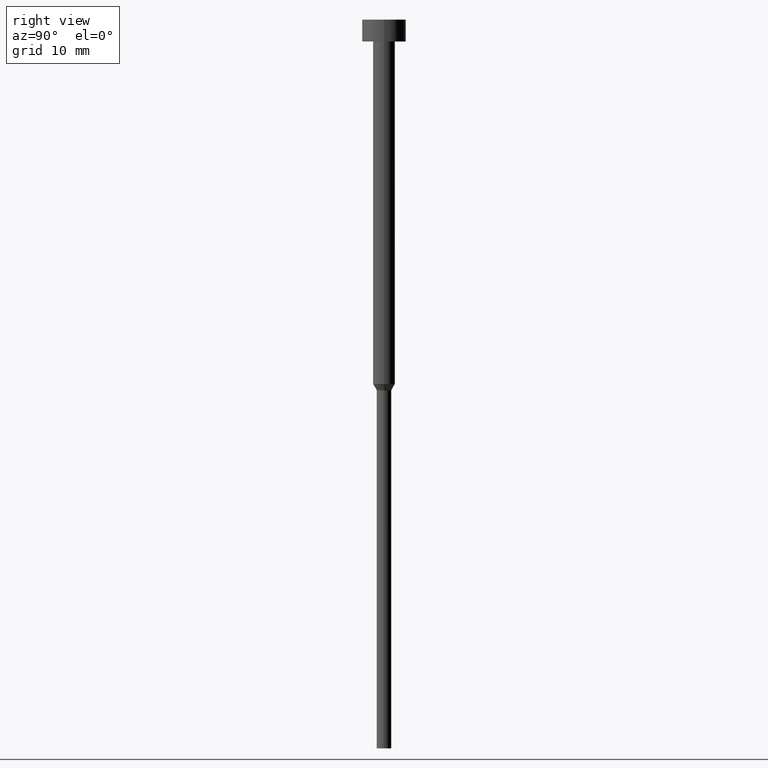
[diagram: clean part render]
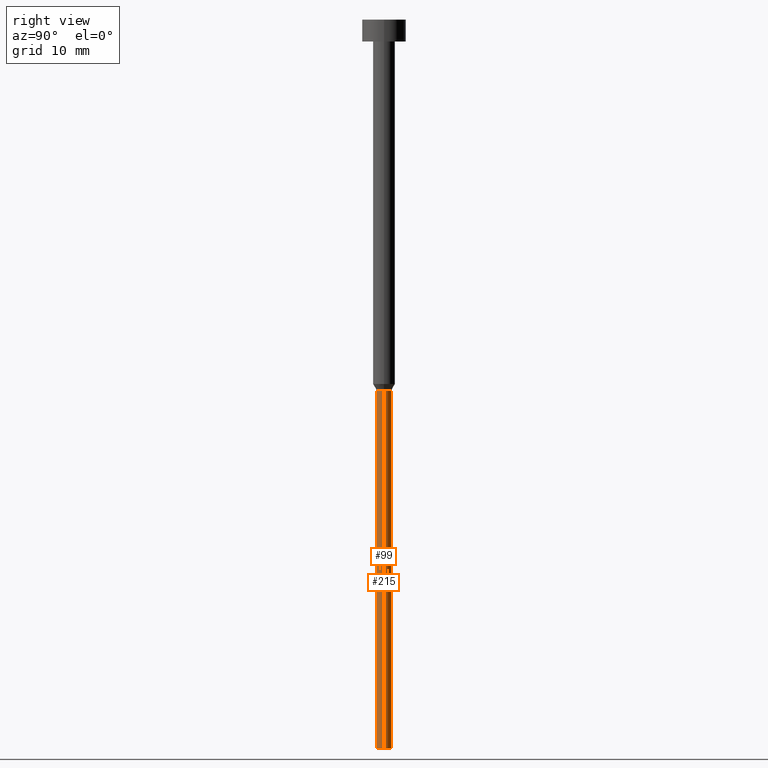
[diagram: same view with one multi-face feature highlighted, each face labeled with its STEP entity id]
A machine part, right view. The highlighted faces form ONE feature: a constant-radius fillet chain: 2 tangent blend faces with common blend radius 1 mm. The faces share edges in the B-rep.
Their STEP definitions:
[1] entity #99 (Cylinder):
#20 = ORIENTED_EDGE ( 'NONE', *, *, #88, .T. ) ;
#24 = CARTESIAN_POINT ( 'NONE',  ( -1.000000000000000000, 1.224646799147353207E-16, 0.000000000000000000 ) ) ;
#38 = CARTESIAN_POINT ( 'NONE',  ( 0.000000000000000000, 0.000000000000000000, -100.0000000000000000 ) ) ;
#42 = CYLINDRICAL_SURFACE ( 'NONE', #206, 1.000000000000000000 ) ;
#46 = CARTESIAN_POINT ( 'NONE',  ( -1.000000000000000000, 1.224646799147353207E-16, -50.86602540378444104 ) ) ;
#69 = VERTEX_POINT ( 'NONE', #46 ) ;
#77 = CARTESIAN_POINT ( 'NONE',  ( 0.000000000000000000, 0.000000000000000000, -50.86602540378444104 ) ) ;
#88 = EDGE_CURVE ( 'NONE', #312, #264, #226, .T. ) ;
#95 = AXIS2_PLACEMENT_3D ( 'NONE', #38, #205, #238 ) ;
#97 = FACE_OUTER_BOUND ( 'NONE', #117, .T. ) ;
#99 = ADVANCED_FACE ( 'NONE', ( #97 ), #42, .T. ) ;
#100 = DIRECTION ( 'NONE',  ( 1.000000000000000000, 0.000000000000000000, 0.000000000000000000 ) ) ;
#109 = LINE ( 'NONE', #24, #199 ) ;
#113 = LINE ( 'NONE', #305, #291 ) ;
#117 = EDGE_LOOP ( 'NONE', ( #229, #20, #292, #133 ) ) ;
#124 = CARTESIAN_POINT ( 'NONE',  ( 0.000000000000000000, 0.000000000000000000, 0.000000000000000000 ) ) ;
#133 = ORIENTED_EDGE ( 'NONE', *, *, #150, .F. ) ;
#138 = DIRECTION ( 'NONE',  ( -0.000000000000000000, -0.000000000000000000, 1.000000000000000000 ) ) ;
#150 = EDGE_CURVE ( 'NONE', #69, #255, #265, .T. ) ;
#152 = DIRECTION ( 'NONE',  ( -0.000000000000000000, -0.000000000000000000, 1.000000000000000000 ) ) ;
#161 = DIRECTION ( 'NONE',  ( -0.000000000000000000, -0.000000000000000000, 1.000000000000000000 ) ) ;
#170 = CARTESIAN_POINT ( 'NONE',  ( -1.000000000000000000, 1.224646799147353207E-16, -100.0000000000000000 ) ) ;
#199 = VECTOR ( 'NONE', #161, 1000.000000000000000 ) ;
#205 = DIRECTION ( 'NONE',  ( -0.000000000000000000, -0.000000000000000000, 1.000000000000000000 ) ) ;
#206 = AXIS2_PLACEMENT_3D ( 'NONE', #124, #152, #100 ) ;
#216 = CARTESIAN_POINT ( 'NONE',  ( 1.000000000000000000, 0.000000000000000000, -100.0000000000000000 ) ) ;
#220 = CARTESIAN_POINT ( 'NONE',  ( 1.000000000000000000, 0.000000000000000000, -50.86602540378444104 ) ) ;
#226 = CIRCLE ( 'NONE', #95, 1.000000000000000000 ) ;
#229 = ORIENTED_EDGE ( 'NONE', *, *, #235, .F. ) ;
#230 = AXIS2_PLACEMENT_3D ( 'NONE', #77, #274, #352 ) ;
#235 = EDGE_CURVE ( 'NONE', #312, #69, #109, .T. ) ;
#238 = DIRECTION ( 'NONE',  ( 1.000000000000000000, 0.000000000000000000, 0.000000000000000000 ) ) ;
#255 = VERTEX_POINT ( 'NONE', #220 ) ;
#264 = VERTEX_POINT ( 'NONE', #216 ) ;
#265 = CIRCLE ( 'NONE', #230, 1.000000000000000000 ) ;
#274 = DIRECTION ( 'NONE',  ( -0.000000000000000000, -0.000000000000000000, 1.000000000000000000 ) ) ;
#291 = VECTOR ( 'NONE', #138, 1000.000000000000000 ) ;
#292 = ORIENTED_EDGE ( 'NONE', *, *, #304, .T. ) ;
#304 = EDGE_CURVE ( 'NONE', #264, #255, #113, .T. ) ;
#305 = CARTESIAN_POINT ( 'NONE',  ( 1.000000000000000000, 0.000000000000000000, 0.000000000000000000 ) ) ;
#312 = VERTEX_POINT ( 'NONE', #170 ) ;
#352 = DIRECTION ( 'NONE',  ( 1.000000000000000000, 0.000000000000000000, 0.000000000000000000 ) ) ;
[2] entity #215 (Cylinder):
#10 = CIRCLE ( 'NONE', #214, 1.000000000000000000 ) ;
#24 = CARTESIAN_POINT ( 'NONE',  ( -1.000000000000000000, 1.224646799147353207E-16, 0.000000000000000000 ) ) ;
#26 = FACE_OUTER_BOUND ( 'NONE', #261, .T. ) ;
#46 = CARTESIAN_POINT ( 'NONE',  ( -1.000000000000000000, 1.224646799147353207E-16, -50.86602540378444104 ) ) ;
#54 = DIRECTION ( 'NONE',  ( -0.000000000000000000, -0.000000000000000000, 1.000000000000000000 ) ) ;
#69 = VERTEX_POINT ( 'NONE', #46 ) ;
#75 = DIRECTION ( 'NONE',  ( 1.000000000000000000, 0.000000000000000000, 0.000000000000000000 ) ) ;
#101 = CARTESIAN_POINT ( 'NONE',  ( 0.000000000000000000, 0.000000000000000000, -50.86602540378444104 ) ) ;
#109 = LINE ( 'NONE', #24, #199 ) ;
#113 = LINE ( 'NONE', #305, #291 ) ;
#132 = CARTESIAN_POINT ( 'NONE',  ( 0.000000000000000000, 0.000000000000000000, -100.0000000000000000 ) ) ;
#135 = AXIS2_PLACEMENT_3D ( 'NONE', #354, #54, #189 ) ;
#138 = DIRECTION ( 'NONE',  ( -0.000000000000000000, -0.000000000000000000, 1.000000000000000000 ) ) ;
#158 = DIRECTION ( 'NONE',  ( 1.000000000000000000, 0.000000000000000000, 0.000000000000000000 ) ) ;
#160 = ORIENTED_EDGE ( 'NONE', *, *, #235, .T. ) ;
#161 = DIRECTION ( 'NONE',  ( -0.000000000000000000, -0.000000000000000000, 1.000000000000000000 ) ) ;
#162 = DIRECTION ( 'NONE',  ( -0.000000000000000000, -0.000000000000000000, 1.000000000000000000 ) ) ;
#170 = CARTESIAN_POINT ( 'NONE',  ( -1.000000000000000000, 1.224646799147353207E-16, -100.0000000000000000 ) ) ;
#186 = EDGE_CURVE ( 'NONE', #255, #69, #10, .T. ) ;
#189 = DIRECTION ( 'NONE',  ( 1.000000000000000000, 0.000000000000000000, 0.000000000000000000 ) ) ;
#199 = VECTOR ( 'NONE', #161, 1000.000000000000000 ) ;
#214 = AXIS2_PLACEMENT_3D ( 'NONE', #101, #294, #158 ) ;
#215 = ADVANCED_FACE ( 'NONE', ( #26 ), #248, .T. ) ;
#216 = CARTESIAN_POINT ( 'NONE',  ( 1.000000000000000000, 0.000000000000000000, -100.0000000000000000 ) ) ;
#220 = CARTESIAN_POINT ( 'NONE',  ( 1.000000000000000000, 0.000000000000000000, -50.86602540378444104 ) ) ;
#235 = EDGE_CURVE ( 'NONE', #312, #69, #109, .T. ) ;
#245 = EDGE_CURVE ( 'NONE', #264, #312, #346, .T. ) ;
#248 = CYLINDRICAL_SURFACE ( 'NONE', #135, 1.000000000000000000 ) ;
#255 = VERTEX_POINT ( 'NONE', #220 ) ;
#261 = EDGE_LOOP ( 'NONE', ( #285, #160, #316, #355 ) ) ;
#264 = VERTEX_POINT ( 'NONE', #216 ) ;
#272 = AXIS2_PLACEMENT_3D ( 'NONE', #132, #162, #75 ) ;
#285 = ORIENTED_EDGE ( 'NONE', *, *, #245, .T. ) ;
#291 = VECTOR ( 'NONE', #138, 1000.000000000000000 ) ;
#294 = DIRECTION ( 'NONE',  ( -0.000000000000000000, -0.000000000000000000, 1.000000000000000000 ) ) ;
#304 = EDGE_CURVE ( 'NONE', #264, #255, #113, .T. ) ;
#305 = CARTESIAN_POINT ( 'NONE',  ( 1.000000000000000000, 0.000000000000000000, 0.000000000000000000 ) ) ;
#312 = VERTEX_POINT ( 'NONE', #170 ) ;
#316 = ORIENTED_EDGE ( 'NONE', *, *, #186, .F. ) ;
#346 = CIRCLE ( 'NONE', #272, 1.000000000000000000 ) ;
#354 = CARTESIAN_POINT ( 'NONE',  ( 0.000000000000000000, 0.000000000000000000, 0.000000000000000000 ) ) ;
#355 = ORIENTED_EDGE ( 'NONE', *, *, #304, .F. ) ;